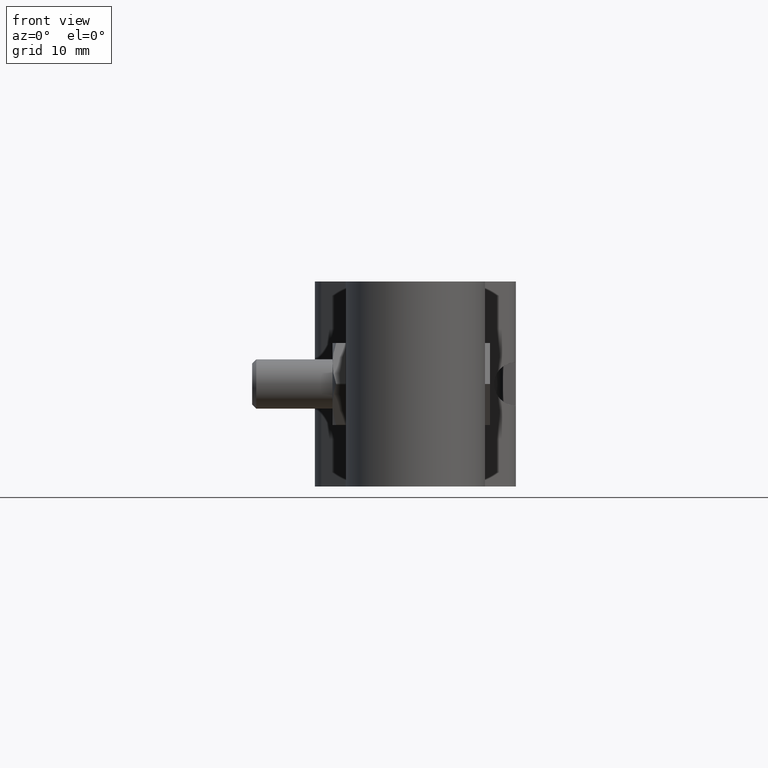
[diagram: clean part render]
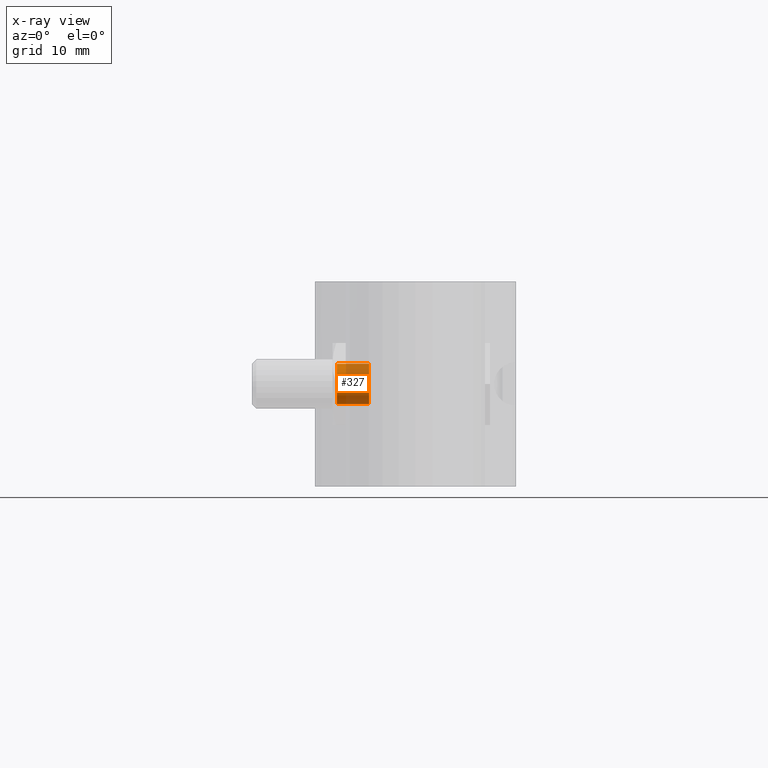
[diagram: x-ray — body ghosted, one internal face saturated and labeled with its STEP entity id]
A machine part, front view, then the same camera in x-ray: the body is ghosted and one INTERNAL B-rep face — a face not visible from any outside direction — is saturated and labeled: STEP entity #327.
In plain terms, the highlighted cylindrical surface (bore or boss wall) has radius 2.4585 mm, axis along (-1, 0, 0).
Its self-contained STEP definition (entity closure, byte-faithful):
#327 = ADVANCED_FACE( '', ( #518, #519 ), #520, .F. );
#518 = FACE_OUTER_BOUND( '', #790, .T. );
#519 = FACE_OUTER_BOUND( '', #791, .T. );
#520 = CYLINDRICAL_SURFACE( '', #792, 2.45850000000000 );
#790 = EDGE_LOOP( '', ( #1376 ) );
#791 = EDGE_LOOP( '', ( #1377 ) );
#792 = AXIS2_PLACEMENT_3D( '', #1378, #1379, #1380 );
#1376 = ORIENTED_EDGE( '', *, *, #2050, .T. );
#1377 = ORIENTED_EDGE( '', *, *, #2049, .F. );
#1378 = CARTESIAN_POINT( '', ( -5.10000000000004, 21.0416817409594, -8.67361737988408E-016 ) );
#1379 = DIRECTION( '', ( -1.00000000000000, 0.000000000000000, 0.000000000000000 ) );
#1380 = DIRECTION( '', ( 0.000000000000000, 0.000000000000000, -1.00000000000000 ) );
#2049 = EDGE_CURVE( '', #2445, #2445, #2446, .T. );
#2050 = EDGE_CURVE( '', #2447, #2447, #2448, .T. );
#2445 = VERTEX_POINT( '', #3127 );
#2446 = CIRCLE( '', #3128, 2.45850000000000 );
#2447 = VERTEX_POINT( '', #3129 );
#2448 = CIRCLE( '', #3130, 2.45850000000000 );
#3127 = CARTESIAN_POINT( '', ( -9.55850000000004, 21.0416817409594, -2.45850000000000 ) );
#3128 = AXIS2_PLACEMENT_3D( '', #3856, #3857, #3858 );
#3129 = CARTESIAN_POINT( '', ( -5.64150000000004, 21.0416817409594, -2.45850000000000 ) );
#3130 = AXIS2_PLACEMENT_3D( '', #3859, #3860, #3861 );
#3856 = CARTESIAN_POINT( '', ( -9.55850000000004, 21.0416817409594, -8.67361737988408E-016 ) );
#3857 = DIRECTION( '', ( 1.00000000000000, 0.000000000000000, 0.000000000000000 ) );
#3858 = DIRECTION( '', ( 0.000000000000000, 0.000000000000000, -1.00000000000000 ) );
#3859 = CARTESIAN_POINT( '', ( -5.64150000000004, 21.0416817409594, -8.67361737988408E-016 ) );
#3860 = DIRECTION( '', ( 1.00000000000000, 0.000000000000000, 0.000000000000000 ) );
#3861 = DIRECTION( '', ( 0.000000000000000, 0.000000000000000, -1.00000000000000 ) );